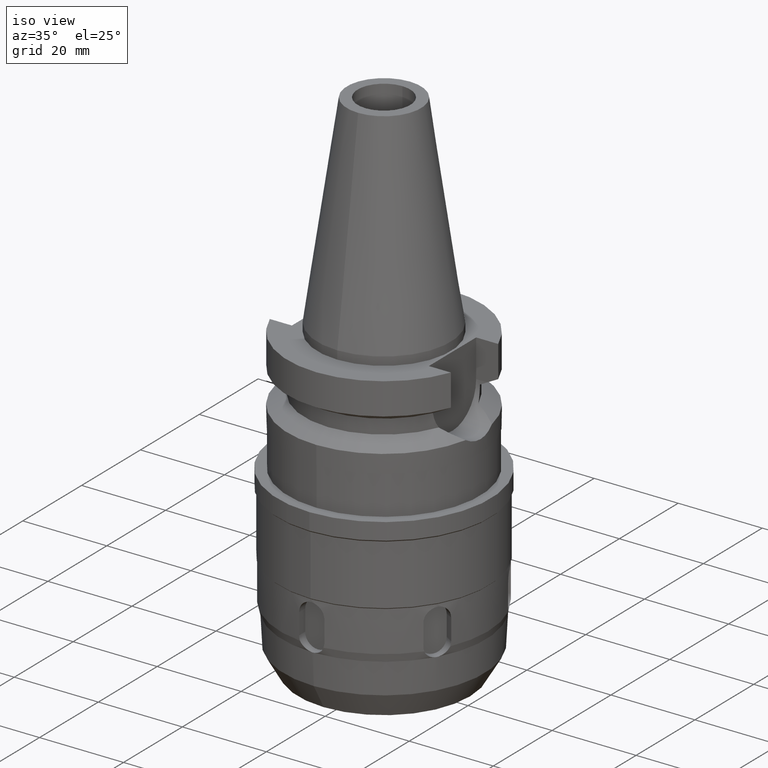
[diagram: clean part render]
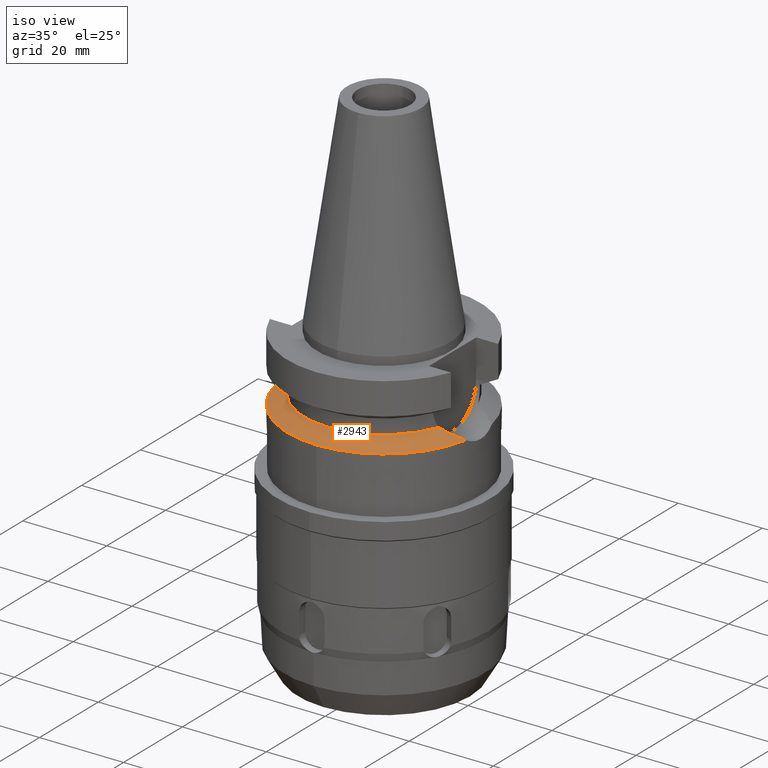
[diagram: same view with one face highlighted and labeled with its STEP entity id]
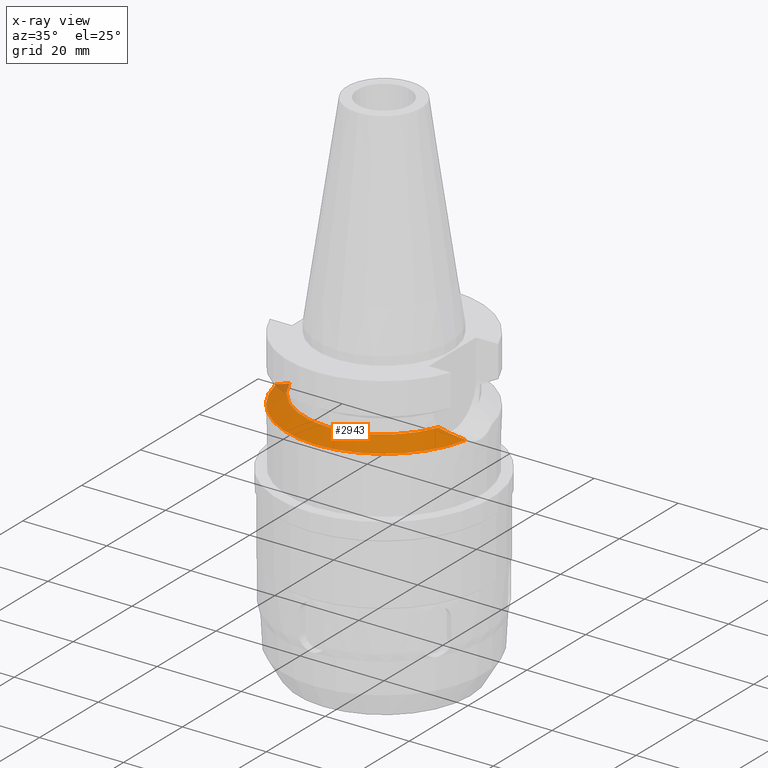
[diagram: x-ray of the same camera — body ghosted, the highlighted face saturated]
A machine part, iso view. The second image highlights one B-rep face of the part: STEP entity #2943.
The next image is the same camera in x-ray: the body ghosted, the highlighted face saturated — about 2% of this face is hidden behind the body in this view.
In plain terms, the highlighted conical surface has half-angle 60 deg.
Its self-contained STEP definition (entity closure, byte-faithful):
#430=CARTESIAN_POINT('',(-2.255786346208E1,-4.488072640470E0,
-1.763279163029E1));
#431=CARTESIAN_POINT('',(-2.210975823467E1,-4.811619122396E0,
-1.741550218094E1));
#432=CARTESIAN_POINT('',(-2.114872167161E1,-5.407480298071E0,
-1.695017791607E1));
#433=CARTESIAN_POINT('',(-1.943662143594E1,-6.197072416587E0,
-1.612549200978E1));
#434=CARTESIAN_POINT('',(-1.832140256504E1,-6.584555956975E0,
-1.559203786958E1));
#435=CARTESIAN_POINT('',(-1.775736593456E1,-6.758398853744E0,
-1.532339055353E1));
#440=CARTESIAN_POINT('',(0.E0,0.E0,-1.532339055353E1));
#441=DIRECTION('',(0.E0,0.E0,1.E0));
#442=DIRECTION('',(-9.345982070819E-1,-3.557052028286E-1,0.E0));
#443=AXIS2_PLACEMENT_3D('',#440,#441,#442);
#448=CARTESIAN_POINT('',(0.E0,0.E0,-1.532339055353E1));
#449=DIRECTION('',(0.E0,0.E0,1.E0));
#450=DIRECTION('',(0.E0,-1.E0,0.E0));
#451=AXIS2_PLACEMENT_3D('',#448,#449,#450);
#456=CARTESIAN_POINT('',(1.775736593456E1,-6.758398853744E0,-1.532339055353E1));
#457=CARTESIAN_POINT('',(1.820011768028E1,-6.621937422223E0,-1.553427059525E1));
#458=CARTESIAN_POINT('',(1.904702544085E1,-6.328968878422E0,-1.593915977455E1));
#459=CARTESIAN_POINT('',(2.003991690181E1,-5.923380380521E0,-1.641600510358E1));
#460=CARTESIAN_POINT('',(2.125120747676E1,-5.336755514147E0,-1.699991584094E1));
#461=CARTESIAN_POINT('',(2.211648141552E1,-4.806764768156E0,-1.741876229972E1));
#462=CARTESIAN_POINT('',(2.255786346208E1,-4.488072640470E0,-1.763279163029E1));
#467=CARTESIAN_POINT('',(0.E0,0.E0,-1.763279163029E1));
#468=DIRECTION('',(0.E0,0.E0,-1.E0));
#469=DIRECTION('',(9.807766722644E-1,-1.951335930639E-1,0.E0));
#470=AXIS2_PLACEMENT_3D('',#467,#468,#469);
#475=CARTESIAN_POINT('',(0.E0,0.E0,-1.763279163029E1));
#476=DIRECTION('',(0.E0,0.E0,-1.E0));
#477=DIRECTION('',(0.E0,-1.E0,0.E0));
#478=AXIS2_PLACEMENT_3D('',#475,#476,#477);
#517=CARTESIAN_POINT('',(2.255786346208E1,-4.488072640470E0,-1.763279163029E1));
#2511=VERTEX_POINT('',#517);
#2514=CARTESIAN_POINT('',(0.E0,-2.3E1,-1.763279163029E1));
#2515=VERTEX_POINT('',#2514);
#2516=VERTEX_POINT('',#456);
#2529=VERTEX_POINT('',#430);
#2530=VERTEX_POINT('',#435);
#2531=CARTESIAN_POINT('',(0.E0,-1.9E1,-1.532339055353E1));
#2532=VERTEX_POINT('',#2531);
#2925=CARTESIAN_POINT('',(0.E0,0.E0,-1.647809109191E1));
#2926=DIRECTION('',(0.E0,0.E0,-1.E0));
#2927=DIRECTION('',(0.E0,-1.E0,0.E0));
#2928=AXIS2_PLACEMENT_3D('',#2925,#2926,#2927);
#2929=CONICAL_SURFACE('',#2928,2.1E1,6.E1);
#2930=ORIENTED_EDGE('',*,*,#2906,.T.);
#2932=ORIENTED_EDGE('',*,*,#2931,.T.);
#2934=ORIENTED_EDGE('',*,*,#2933,.T.);
#2936=ORIENTED_EDGE('',*,*,#2935,.T.);
#2938=ORIENTED_EDGE('',*,*,#2937,.T.);
#2940=ORIENTED_EDGE('',*,*,#2939,.T.);
#2941=EDGE_LOOP('',(#2930,#2932,#2934,#2936,#2938,#2940));
#2942=FACE_OUTER_BOUND('',#2941,.F.);
#436=B_SPLINE_CURVE_WITH_KNOTS('',3,(#430,#431,#432,#433,#434,#435),
.UNSPECIFIED.,.F.,.F.,(4,1,1,4),(0.E0,3.333333333333E-1,6.666666666667E-1,1.E0),
.UNSPECIFIED.);
#444=CIRCLE('',#443,1.9E1);
#452=CIRCLE('',#451,1.9E1);
#463=B_SPLINE_CURVE_WITH_KNOTS('',3,(#456,#457,#458,#459,#460,#461,#462),
.UNSPECIFIED.,.F.,.F.,(4,1,1,1,4),(0.E0,2.5E-1,5.E-1,7.5E-1,1.E0),
.UNSPECIFIED.);
#471=CIRCLE('',#470,2.3E1);
#479=CIRCLE('',#478,2.3E1);
#2906=EDGE_CURVE('',#2529,#2530,#436,.T.);
#2931=EDGE_CURVE('',#2530,#2532,#444,.T.);
#2933=EDGE_CURVE('',#2532,#2516,#452,.T.);
#2935=EDGE_CURVE('',#2516,#2511,#463,.T.);
#2937=EDGE_CURVE('',#2511,#2515,#471,.T.);
#2939=EDGE_CURVE('',#2515,#2529,#479,.T.);
#2943=ADVANCED_FACE('',(#2942),#2929,.T.);